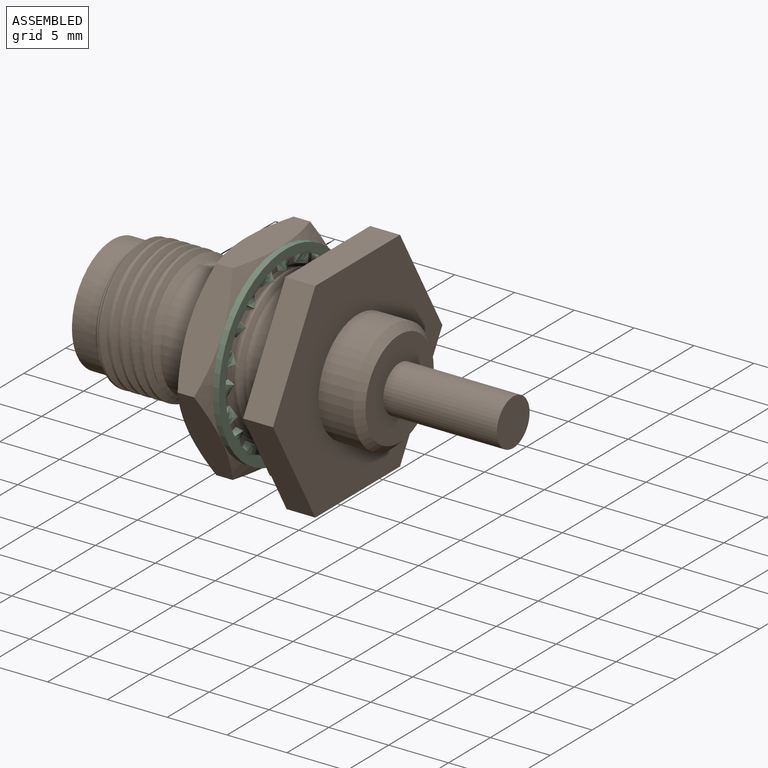
[diagram: assembled view]
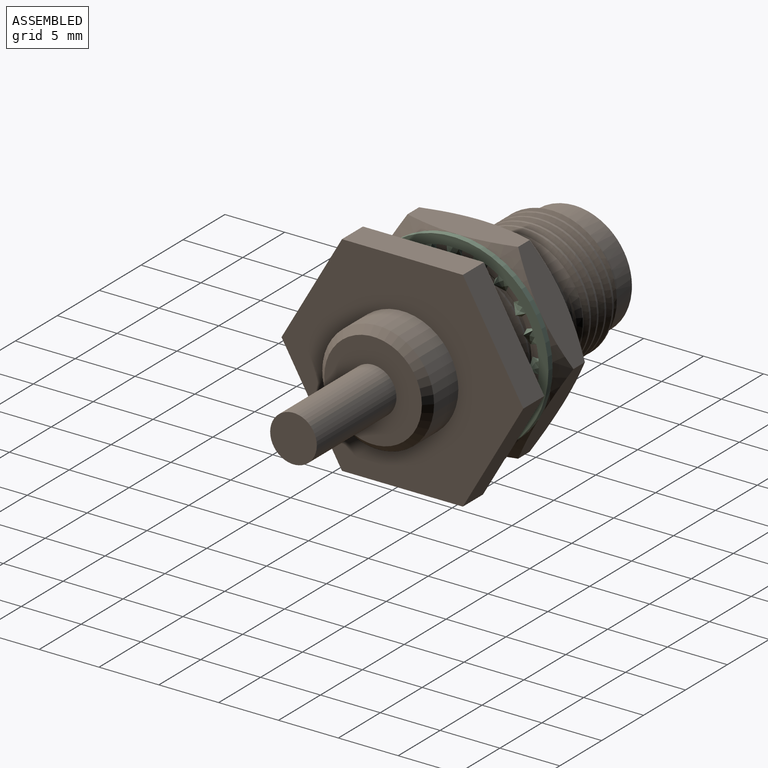
[diagram: assembled view, second angle]
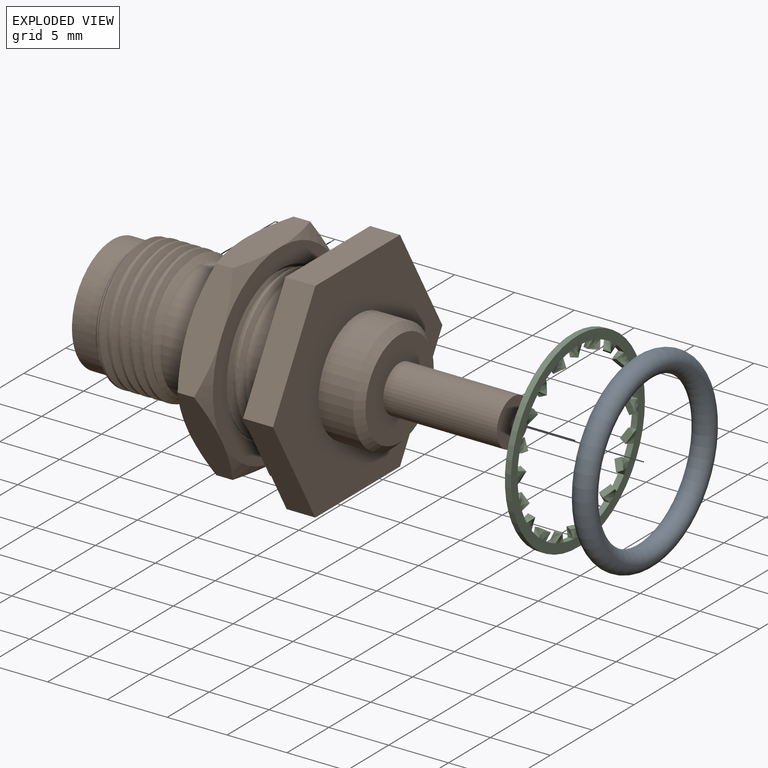
[diagram: exploded view]
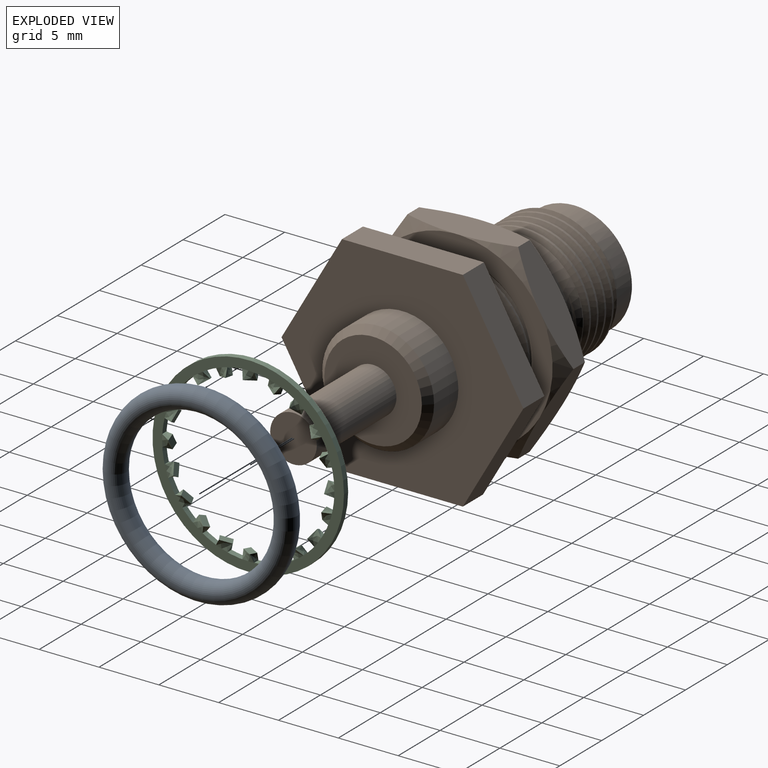
[diagram: exploded view, second angle]
ASSEMBLY  parts=3 mates=3
PART A: 1 faces, bbox 1.8x17.4x17.4 mm
  f0: torus R=7.15mm, axis (-1,0,0), area 254mm2
PART B: 96 faces, bbox 36.4x23.1x21.3 mm
  f0: cylinder r=8.25mm len=16.5mm, axis (1,0,0), area 60.8mm2, adj f81,f82,f87,f88,f89
  f1: plane 8.75x5.05mm, normal (0,-0.87,0.5), area 25.3mm2, adj f2,f5,f84,f89
  f2: plane 8.75x5.05mm, normal (0,-0.87,-0.5), area 24.9mm2, adj f1,f82,f83,f84,f87,f89
  f3: plane 8.75x5.05mm, normal (0,0.87,-0.5), area 24.9mm2, adj f4,f82,f83,f84,f88,f89
  f4: plane 8.75x5.05mm, normal (0,0.87,0.5), area 25.3mm2, adj f3,f5,f84,f89
  f5: plane 10.1x2.5mm, normal (0,0,1), area 25.3mm2, adj f1,f4,f84,f89
  f6: plane 6.95x5.87mm, normal (0,0,-1), area 26.7mm2, adj f44,f45,f47,f48,f49,f50,f51,f53
  f7: plane 11x11mm, normal (-1,0,0), area 73.1mm2, adj f8
  f8: cylinder r=4.83mm len=9.65mm, axis (1,0,0), area 60.6mm2, adj f7,f11
  f9: cylinder r=4.99mm len=1.5mm, axis (-1,0,0), area 0mm2, adj f10,f11,f12
  f10: bspline ~1.57x0.88mm, area 0.1mm2, adj f9,f11,f14
  f11: cone r=4.83mm half-angle=45deg, axis (1,0,0), area 31.9mm2, adj f8,f9,f10,f12,f13,f14,f17
  f12: bspline ~9.95x9.94mm, area 13.7mm2, adj f9,f11,f13,f14,f15
  f13: bspline ~10.91x10.9mm, area -64.4mm2, adj f11,f12,f16,f17
  f14: bspline ~10.92x10.91mm, area 52.8mm2, adj f10,f11,f12,f17,f18
  f15: bspline ~10.05x10.04mm, area 12.7mm2, adj f12,f16,f18,f19
  f16: bspline ~10.91x10.89mm, area 48.9mm2, adj f13,f15,f17,f19
  f17: cylinder r=5.46mm len=10.92mm, axis (1,0,0), area 30.9mm2, adj f11,f13,f14,f16,f18,f19
  f18: bspline ~10.91x10.9mm, area 40.1mm2, adj f14,f15,f17,f19
  f19: cone r=5.46mm half-angle=45deg, axis (-1,0,0), area 18.3mm2, adj f15,f16,f17,f18,f20
  f20: cylinder r=4.83mm len=9.65mm, axis (1,0,0), area 109.1mm2, adj f19,f21
  f21: plane 11.33x11.2mm, normal (-1,0,0), area 27mm2, adj f20,f25,f26
  f22: bspline ~4.74x0.93mm, area 0.1mm2, adj f24,f26,f27
  f23: bspline ~3.21x0.43mm, area 0.2mm2, adj f24,f26,f27
  f24: bspline ~7.53x6.13mm, area 0.6mm2, adj f22,f23,f26,f27
  f25: plane 3.77x0.24mm, normal (0,0,-1), area 0.6mm2, adj f21,f26,f27
  f26: cone r=5.65mm half-angle=45deg, axis (1,0,0), area 8.3mm2, adj f21,f22,f23,f24,f25,f27
  f27: plane 16.61x16.61mm, normal (-1,0,0), area 95.1mm2, adj f22,f23,f24,f25,f26,f28,f29,f30
  f28: cone r=7.99mm half-angle=60deg, axis (1,0,0), area 6.3mm2, adj f27,f34,f35
  f29: cone r=7.99mm half-angle=60deg, axis (1,0,0), area 6.1mm2, adj f27,f35,f36
  f30: cone r=7.99mm half-angle=60deg, axis (1,0,0), area 6.1mm2, adj f27,f36,f37
  f31: cone r=7.99mm half-angle=60deg, axis (1,0,0), area 6.3mm2, adj f27,f37,f38
  f32: cone r=7.99mm half-angle=60deg, axis (1,0,0), area 19.2mm2, adj f27,f33,f34,f38
  f33: plane 12.09x5.65mm, normal (0,0,-1), area 21.3mm2, adj f32,f34,f38,f39
  f34: plane 8.76x5.38mm, normal (0,0.87,-0.5), area 21.3mm2, adj f28,f32,f33,f35,f39,f40
  f35: plane 8.75x5.37mm, normal (0,0.87,0.5), area 21.3mm2, adj f28,f29,f34,f36,f40,f41
  f36: plane 9.92x3.48mm, normal (0,0,1), area 21.4mm2, adj f27,f29,f30,f35,f37,f41,f42,f46
  f37: plane 8.75x5.37mm, normal (0,-0.87,0.5), area 21.3mm2, adj f30,f31,f36,f38,f42,f43
  f38: plane 8.76x5.38mm, normal (0,-0.87,-0.5), area 21.3mm2, adj f31,f32,f33,f37,f39,f43
  f39: cone r=7.99mm half-angle=60deg, axis (-1,0,0), area 19.2mm2, adj f33,f34,f38,f46
  f40: cone r=7.99mm half-angle=60deg, axis (-1,0,0), area 6.3mm2, adj f34,f35,f46
  f41: cone r=7.99mm half-angle=60deg, axis (-1,0,0), area 6.1mm2, adj f35,f36,f46
  f42: cone r=7.99mm half-angle=60deg, axis (-1,0,0), area 6.1mm2, adj f36,f37,f46
  f43: cone r=7.99mm half-angle=60deg, axis (-1,0,0), area 6.3mm2, adj f37,f38,f46
  f44: bspline ~11.46x8.82mm, area 3.9mm2, adj f6,f48,f50,f56
  f45: cylinder r=6.25mm len=5.1mm, axis (1,0,0), area 0.5mm2, adj f6,f49,f51
  f46: plane 16x16mm, normal (1,0,0), area 74.5mm2, adj f36,f39,f40,f41,f42,f43,f51
  f47: bspline ~11.67x11.44mm, area 6.6mm2, adj f6,f49,f53
  f48: bspline ~11.83x9.11mm, area 4.1mm2, adj f6,f44,f55,f60
  f49: bspline ~12.65x12.4mm, area 12.3mm2, adj f6,f45,f47,f51,f55
  f50: bspline ~12.27x9.45mm, area 8.3mm2, adj f6,f44,f51,f57,f63
  f51: cone r=5.96mm half-angle=45deg, axis (1,0,0), area 8mm2, adj f6,f45,f46,f49,f50,f52,f55,f57
  f52: cylinder r=6.31mm len=12.62mm, axis (1,0,0), area 9.3mm2, adj f51,f55,f57,f65
  f53: bspline ~12.51x12.26mm, area 18.6mm2, adj f6,f47,f58
  f54: extruded ~11.53x11.31mm, area 27.2mm2, adj f6,f66,f67
  f55: bspline ~12.72x12.71mm, area 19.2mm2, adj f6,f48,f49,f51,f52,f60,f62,f66
  f56: bspline ~10.55x4.22mm, area 2.7mm2, adj f6,f44,f60,f63
  f57: bspline ~12.61x12.6mm, area 7.2mm2, adj f50,f51,f52,f63,f67
  f58: cylinder r=6.25mm len=12.51mm, axis (1,0,0), area 6mm2, adj f6,f53,f59,f64
  f59: cone r=6.25mm half-angle=45deg, axis (-1,0,0), area 0.3mm2, adj f6,f58,f64
  f60: bspline ~10.89x4.4mm, area 2.8mm2, adj f6,f48,f55,f56,f66
  f61: cylinder r=5.86mm len=3.79mm, axis (1,0,0), area 0.7mm2, adj f6,f66,f67
  f62: cylinder r=5.86mm len=3.79mm, axis (1,0,0), area 0.7mm2, adj f6,f55,f67
  f63: bspline ~11.21x4.54mm, area 5.6mm2, adj f6,f50,f56,f57,f67
  f64: bspline ~12.51x12.26mm, area 17.8mm2, adj f6,f58,f59,f69
  f65: bspline ~12.61x12.61mm, area 14.5mm2, adj f52,f66,f67,f72
  f66: bspline ~12.61x12.61mm, area 29.7mm2, adj f6,f54,f55,f60,f61,f65,f72
  f67: bspline ~12.91x12.9mm, area 31.9mm2, adj f6,f54,f57,f61,f62,f63,f65,f72
  f68: bspline ~12.7x12.29mm, area 8.7mm2, adj f6,f69,f76
  f69: bspline ~11.67x11.44mm, area 6.5mm2, adj f6,f64,f68,f76
  f70: cylinder r=5.8mm len=2.3mm, axis (-1,0,0), area 0.1mm2, adj f6,f71,f76
  f71: bspline ~2.39x1.41mm, area 0.2mm2, adj f6,f70,f76
  f72: cone r=6.31mm half-angle=45deg, axis (-1,0,0), area 8.6mm2, adj f6,f65,f66,f67,f73,f77
  f73: cone r=5.89mm half-angle=45deg, axis (1,0,0), area 2.8mm2, adj f6,f67,f72,f75,f77
  f74: bspline ~11.53x10.91mm, area 3.7mm2, adj f6,f75,f77,f86
  f75: bspline ~12.33x12.07mm, area 10mm2, adj f6,f67,f73,f74,f77
  f76: cone r=6.24mm half-angle=45deg, axis (-1,0,0), area 16mm2, adj f6,f68,f69,f70,f71,f78
  f77: plane 12.64x12.64mm, normal (1,0,0), area 18.3mm2, adj f6,f72,f73,f74,f75,f85,f86
  f78: cylinder r=5.65mm len=11.3mm, axis (1,0,0), area 50mm2, adj f6,f76,f79
  f79: plane 12.5x11.8mm, normal (-1,0,0), area 19.8mm2, adj f6,f78,f80
  f80: cylinder r=6.25mm len=12.5mm, axis (1,0,0), area 79.8mm2, adj f6,f79,f81,f90
  f81: plane 16.5x16.5mm, normal (-1,0,0), area 91.1mm2, adj f0,f80
  f82: plane 13.8x3.21mm, normal (-1,0,0), area 15.4mm2, adj f0,f2,f3,f83,f87,f88
  f83: plane 10.1x2.4mm, normal (0,0,-1), area 24.2mm2, adj f2,f3,f82,f84
  f84: plane 20.21x17.5mm, normal (1,0,0), area 196.6mm2, adj f1,f2,f3,f4,f5,f83,f91
  f85: cone r=5.89mm half-angle=45deg, axis (1,0,0), area 1.6mm2, adj f6,f77,f86
  f86: bspline ~11.59x4.59mm, area 3.1mm2, adj f6,f74,f77,f85
  f87: plane 0.79x0.1mm, normal (0,0,-1), area 0.1mm2, adj f0,f2,f82,f89
  f88: plane 0.79x0.1mm, normal (0,0,-1), area 0.1mm2, adj f0,f3,f82,f89
  f89: plane 20.21x14.3mm, normal (-1,0,0), area 36mm2, adj f0,f1,f2,f3,f4,f5,f87,f88
  f90: plane 5.77x0.71mm, normal (-1,0,0), area 2.7mm2, adj f6,f80
  f91: cylinder r=4.68mm len=9.35mm, axis (-1,0,0), area 85.2mm2, adj f84,f95
  f92: plane 8.15x8.15mm, normal (1,0,0), area 40.2mm2, adj f93,f95
  f93: cylinder r=1.95mm len=9.5mm, axis (-1,0,0), area 116.4mm2, adj f92,f94
  f94: plane 3.9x3.9mm, normal (1,0,0), area 11.9mm2, adj f93
  f95: cone r=4.07mm half-angle=45deg, axis (-1,0,0), area 23.3mm2, adj f91,f92
PART C: 130 faces, bbox 1x16x16 mm
  f0: cylinder r=7.2mm len=2.01mm, axis (-1,0,0), area 0.6mm2, adj f1,f125,f126,f127,f128,f129
  f1: plane 16.01x16.01mm, normal (-1,0,0), area 38.1mm2, adj f0,f2,f11,f12,f16,f17,f18,f22
  f2: cylinder r=7.2mm len=2.23mm, axis (-1,0,0), area 0.6mm2, adj f1,f3,f6,f9,f10,f127
  f3: bspline ~1.08x0.71mm, area 0.7mm2, adj f2,f4,f5,f10,f127
  f4: plane 1.15x1mm, normal (0,-1,0), area 0.6mm2, adj f3,f5,f10,f11
  f5: bspline ~0.75x0.7mm, area 0.4mm2, adj f3,f4,f11,f12
  f6: bspline ~1.24x0.91mm, area 0.7mm2, adj f2,f7,f8,f9,f127
  f7: plane 1.1x1mm, normal (0,-0.95,-0.31), area 0.6mm2, adj f6,f8,f9,f123
  f8: bspline ~0.75x0.69mm, area 0.4mm2, adj f6,f7,f122,f123,f127
  f9: bspline ~0.74x0.72mm, area 0.4mm2, adj f2,f6,f7,f123
  f10: bspline ~0.75x0.7mm, area 0.4mm2, adj f2,f3,f4,f11
  f11: bspline ~1.08x0.7mm, area 0.7mm2, adj f1,f4,f5,f10,f12
  f12: cylinder r=7.2mm len=2.23mm, axis (-1,0,0), area 0.6mm2, adj f1,f5,f11,f13,f16,f127
  f13: bspline ~0.74x0.72mm, area 0.4mm2, adj f12,f14,f15,f16
  f14: bspline ~1x0.97mm, area 0.7mm2, adj f13,f15,f17,f18,f127
  f15: plane 1.1x1mm, normal (0,-0.95,0.31), area 0.6mm2, adj f13,f14,f16,f17
  f16: bspline ~1.24x0.91mm, area 0.7mm2, adj f1,f12,f13,f15,f17
  f17: bspline ~0.75x0.69mm, area 0.4mm2, adj f1,f14,f15,f16,f18
  f18: cylinder r=7.2mm len=2.01mm, axis (-1,0,0), area 0.6mm2, adj f1,f14,f17,f19,f22,f127
  f19: bspline ~1.29x1.04mm, area 0.7mm2, adj f18,f20,f21,f22,f127
  f20: plane 1x0.93mm, normal (0,-0.81,0.59), area 0.6mm2, adj f19,f21,f22,f23
  f21: bspline ~0.75x0.61mm, area 0.4mm2, adj f19,f20,f23,f24,f127
  f22: bspline ~0.75x0.69mm, area 0.4mm2, adj f1,f18,f19,f20,f23
  f23: bspline ~1.21x1.05mm, area 0.7mm2, adj f1,f20,f21,f22,f24
  f24: cylinder r=7.2mm len=1.59mm, axis (-1,0,0), area 0.6mm2, adj f1,f21,f23,f25,f29,f127
  f25: bspline ~0.75x0.61mm, area 0.4mm2, adj f24,f26,f28,f29,f127
  f26: bspline ~1.28x1.03mm, area 0.7mm2, adj f25,f27,f28,f31,f127
  f27: bspline ~0.75x0.69mm, area 0.4mm2, adj f26,f28,f29,f31
  f28: plane 1x0.93mm, normal (0,-0.59,0.81), area 0.6mm2, adj f25,f26,f27,f29
  f29: bspline ~1.2x1.05mm, area 0.7mm2, adj f1,f24,f25,f27,f28,f30
  f30: bspline ~0.75x0.69mm, area 0mm2, adj f1,f29
  f31: cylinder r=7.2mm len=2.01mm, axis (-1,0,0), area 0.6mm2, adj f1,f26,f27,f32,f35,f127
  f32: bspline ~1.01x0.97mm, area 0.7mm2, adj f31,f33,f34,f35,f127
  f33: plane 1.1x1mm, normal (0,-0.31,0.95), area 0.6mm2, adj f32,f34,f35,f37
  f34: bspline ~0.75x0.73mm, area 0.4mm2, adj f32,f33,f37,f38,f127
  f35: bspline ~0.75x0.69mm, area 0.4mm2, adj f31,f32,f33,f37
  f36: bspline ~0.75x0.69mm, area 0mm2, adj f1,f37
  f37: bspline ~1.24x0.91mm, area 0.7mm2, adj f1,f33,f34,f35,f36,f38
  f38: cylinder r=7.2mm len=2.23mm, axis (-1,0,0), area 0.6mm2, adj f1,f34,f37,f39,f43,f127
  f39: bspline ~0.75x0.7mm, area 0.4mm2, adj f38,f40,f42,f43
  f40: bspline ~1.08x0.7mm, area 0.7mm2, adj f39,f41,f42,f44,f127
  f41: bspline ~0.75x0.7mm, area 0.4mm2, adj f40,f42,f43,f44
  f42: plane 1.15x1mm, normal (0,0,1), area 0.6mm2, adj f39,f40,f41,f43
  f43: bspline ~1.08x0.71mm, area 0.7mm2, adj f1,f38,f39,f41,f42
  f44: cylinder r=7.2mm len=2.23mm, axis (-1,0,0), area 0.6mm2, adj f1,f40,f41,f45,f48,f127
  f45: bspline ~1.24x0.91mm, area 0.7mm2, adj f44,f46,f47,f48,f127
  f46: plane 1.1x1mm, normal (0,0.31,0.95), area 0.6mm2, adj f45,f47,f48,f49
  f47: bspline ~0.75x0.69mm, area 0.4mm2, adj f45,f46,f49,f50,f127
  f48: bspline ~0.74x0.72mm, area 0.4mm2, adj f44,f45,f46,f49
  f49: bspline ~1.01x0.97mm, area 0.7mm2, adj f1,f46,f47,f48,f50
  f50: cylinder r=7.2mm len=2.01mm, axis (-1,0,0), area 0.6mm2, adj f1,f47,f49,f51,f54,f127
  f51: bspline ~0.75x0.69mm, area 0.4mm2, adj f50,f52,f53,f54,f127
  f52: bspline ~1.21x1.05mm, area 0.7mm2, adj f51,f53,f55,f56,f127
  f53: plane 1x0.93mm, normal (0,0.59,0.81), area 0.6mm2, adj f51,f52,f54,f55
  f54: bspline ~1.29x1.04mm, area 0.7mm2, adj f1,f50,f51,f53,f55
  f55: bspline ~0.75x0.61mm, area 0.4mm2, adj f1,f52,f53,f54,f56
  f56: cylinder r=7.2mm len=1.59mm, axis (-1,0,0), area 0.6mm2, adj f1,f52,f55,f57,f61,f127
  f57: bspline ~1.21x1.05mm, area 0.7mm2, adj f56,f58,f59,f60,f61,f127
  f58: plane 1x0.93mm, normal (0,0.81,0.59), area 0.6mm2, adj f57,f59,f61,f62
  f59: bspline ~0.75x0.69mm, area 0.4mm2, adj f57,f58,f62,f63
  f60: bspline ~0.75x0.69mm, area 0mm2, adj f57,f127
  f61: bspline ~0.75x0.61mm, area 0.4mm2, adj f1,f56,f57,f58,f62
  f62: bspline ~1.28x1.03mm, area 0.7mm2, adj f1,f58,f59,f61,f63
  f63: cylinder r=7.2mm len=2.01mm, axis (-1,0,0), area 0.6mm2, adj f1,f59,f62,f64,f68,f127
  f64: bspline ~0.75x0.69mm, area 0.4mm2, adj f63,f65,f67,f68
  f65: bspline ~1.24x0.91mm, area 0.7mm2, adj f64,f66,f67,f69,f70,f127
  f66: bspline ~0.75x0.69mm, area 0mm2, adj f65,f127
  f67: plane 1.1x1mm, normal (0,0.95,0.31), area 0.6mm2, adj f64,f65,f68,f69
  f68: bspline ~1x0.97mm, area 0.7mm2, adj f1,f63,f64,f67,f69
  f69: bspline ~0.75x0.73mm, area 0.4mm2, adj f1,f65,f67,f68,f70
  f70: cylinder r=7.2mm len=2.23mm, axis (-1,0,0), area 0.6mm2, adj f1,f65,f69,f71,f74,f127
  f71: bspline ~1.08x0.71mm, area 0.7mm2, adj f70,f72,f73,f74,f127
  f72: plane 1.15x1mm, normal (0,1,0), area 0.6mm2, adj f71,f73,f74,f75
  f73: bspline ~0.75x0.7mm, area 0.4mm2, adj f71,f72,f75,f76
  f74: bspline ~0.75x0.7mm, area 0.4mm2, adj f70,f71,f72,f75
  f75: bspline ~1.08x0.7mm, area 0.7mm2, adj f1,f72,f73,f74,f76
  f76: cylinder r=7.2mm len=2.23mm, axis (-1,0,0), area 0.6mm2, adj f1,f73,f75,f77,f80,f127
  f77: bspline ~0.74x0.72mm, area 0.4mm2, adj f76,f78,f79,f80
  f78: bspline ~1.01x0.97mm, area 0.7mm2, adj f77,f79,f81,f82,f127
  f79: plane 1.1x1mm, normal (0,0.95,-0.31), area 0.6mm2, adj f77,f78,f80,f81
  f80: bspline ~1.24x0.91mm, area 0.7mm2, adj f1,f76,f77,f79,f81
  f81: bspline ~0.75x0.69mm, area 0.4mm2, adj f1,f78,f79,f80,f82
  f82: cylinder r=7.2mm len=2.01mm, axis (-1,0,0), area 0.6mm2, adj f1,f78,f81,f83,f86,f127
  f83: bspline ~1.29x1.04mm, area 0.7mm2, adj f82,f84,f85,f86,f127
  f84: plane 1x0.93mm, normal (0,0.81,-0.59), area 0.6mm2, adj f83,f85,f86,f87
  f85: bspline ~0.75x0.61mm, area 0.4mm2, adj f83,f84,f87,f88,f127
  f86: bspline ~0.75x0.69mm, area 0.4mm2, adj f1,f82,f83,f84,f87
  f87: bspline ~1.21x1.05mm, area 0.7mm2, adj f1,f84,f85,f86,f88
  f88: cylinder r=7.2mm len=1.59mm, axis (-1,0,0), area 0.6mm2, adj f1,f85,f87,f89,f93,f127
  f89: bspline ~0.75x0.61mm, area 0.4mm2, adj f88,f90,f92,f93,f127
  f90: bspline ~1.28x1.03mm, area 0.7mm2, adj f89,f91,f92,f95,f127
  f91: bspline ~0.75x0.69mm, area 0.4mm2, adj f90,f92,f93,f95
  f92: plane 1x0.93mm, normal (0,0.59,-0.81), area 0.6mm2, adj f89,f90,f91,f93
  f93: bspline ~1.2x1.05mm, area 0.7mm2, adj f1,f88,f89,f91,f92,f94
  f94: bspline ~0.75x0.69mm, area 0mm2, adj f1,f93
  f95: cylinder r=7.2mm len=2.01mm, axis (-1,0,0), area 0.6mm2, adj f1,f90,f91,f96,f99,f127
  f96: bspline ~1.01x0.97mm, area 0.7mm2, adj f95,f97,f98,f99,f127
  f97: plane 1.1x1mm, normal (0,0.31,-0.95), area 0.6mm2, adj f96,f98,f99,f101
  f98: bspline ~0.75x0.73mm, area 0.4mm2, adj f96,f97,f101,f102,f127
  f99: bspline ~0.75x0.69mm, area 0.4mm2, adj f95,f96,f97,f101
  f100: bspline ~0.75x0.69mm, area 0mm2, adj f1,f101
  f101: bspline ~1.24x0.91mm, area 0.7mm2, adj f1,f97,f98,f99,f100,f102
  f102: cylinder r=7.2mm len=2.23mm, axis (-1,0,0), area 0.6mm2, adj f1,f98,f101,f103,f107,f127
  f103: bspline ~0.75x0.7mm, area 0.4mm2, adj f102,f104,f106,f107
  f104: bspline ~1.08x0.7mm, area 0.7mm2, adj f103,f105,f106,f108,f127
  f105: bspline ~0.75x0.7mm, area 0.4mm2, adj f104,f106,f107,f108
  f106: plane 1.15x1mm, normal (0,0,-1), area 0.6mm2, adj f103,f104,f105,f107
  f107: bspline ~1.08x0.71mm, area 0.7mm2, adj f1,f102,f103,f105,f106
  f108: cylinder r=7.2mm len=2.23mm, axis (-1,0,0), area 0.6mm2, adj f1,f104,f105,f109,f111,f127
  f109: bspline ~1.24x0.91mm, area 0.7mm2, adj f108,f110,f111,f127,f128
  f110: plane 1.1x1mm, normal (0,-0.31,-0.95), area 0.6mm2, adj f109,f111,f128,f129
  f111: bspline ~0.74x0.72mm, area 0.4mm2, adj f108,f109,f110,f129
  f112: bspline ~0.75x0.61mm, area 0.4mm2, adj f1,f113,f114,f115,f125
  f113: plane 1x0.93mm, normal (0,-0.59,-0.81), area 0.6mm2, adj f112,f114,f125,f126
  f114: bspline ~1.21x1.05mm, area 0.7mm2, adj f112,f113,f115,f126,f127
  f115: cylinder r=7.2mm len=1.59mm, axis (-1,0,0), area 0.6mm2, adj f1,f112,f114,f116,f120,f127
  f116: bspline ~1.21x1.05mm, area 0.7mm2, adj f115,f117,f118,f119,f120,f127
  f117: plane 1x0.93mm, normal (0,-0.81,-0.59), area 0.6mm2, adj f116,f118,f120,f121
  f118: bspline ~0.75x0.69mm, area 0.4mm2, adj f116,f117,f121,f122
  f119: bspline ~0.75x0.69mm, area 0mm2, adj f116,f127
  f120: bspline ~0.75x0.61mm, area 0.4mm2, adj f1,f115,f116,f117,f121
  f121: bspline ~1.28x1.03mm, area 0.7mm2, adj f1,f117,f118,f120,f122
  f122: cylinder r=7.2mm len=2.01mm, axis (-1,0,0), area 0.6mm2, adj f1,f8,f118,f121,f123,f127
  f123: bspline ~1x0.97mm, area 0.7mm2, adj f1,f7,f8,f9,f122
  f124: cylinder r=8mm len=16mm, axis (-1,0,0), area 25.1mm2, adj f1,f127
  f125: bspline ~1.29x1.04mm, area 0.7mm2, adj f0,f1,f112,f113,f126
  f126: bspline ~0.75x0.69mm, area 0.4mm2, adj f0,f113,f114,f125,f127
  f127: plane 16.01x16.01mm, normal (1,0,0), area 38.1mm2, adj f0,f2,f3,f6,f8,f12,f14,f18
  f128: bspline ~0.75x0.69mm, area 0.4mm2, adj f0,f109,f110,f127,f129
  f129: bspline ~1.01x0.97mm, area 0.7mm2, adj f0,f1,f110,f111,f128
PLACE A t=(1.31,1.23,-0.12)mm
PLACE B t=(0.41,1.23,-0.12)mm
PLACE C rot(axis=(1,0,0),180deg) t=(-0.69,1.23,-0.12)mm
MATE cylindrical A.f0 <-> B.f20  axis (-1,0,0) through (9.25,1.23,-0.12)mm
MATE fastened A.f0 <-> B.f0  axis (-1,0,0) through (9.25,1.23,-0.12)mm
MATE fastened C.f12 <-> B.f42  axis (-1,0,0) through (4.05,1.23,-0.12)mm
